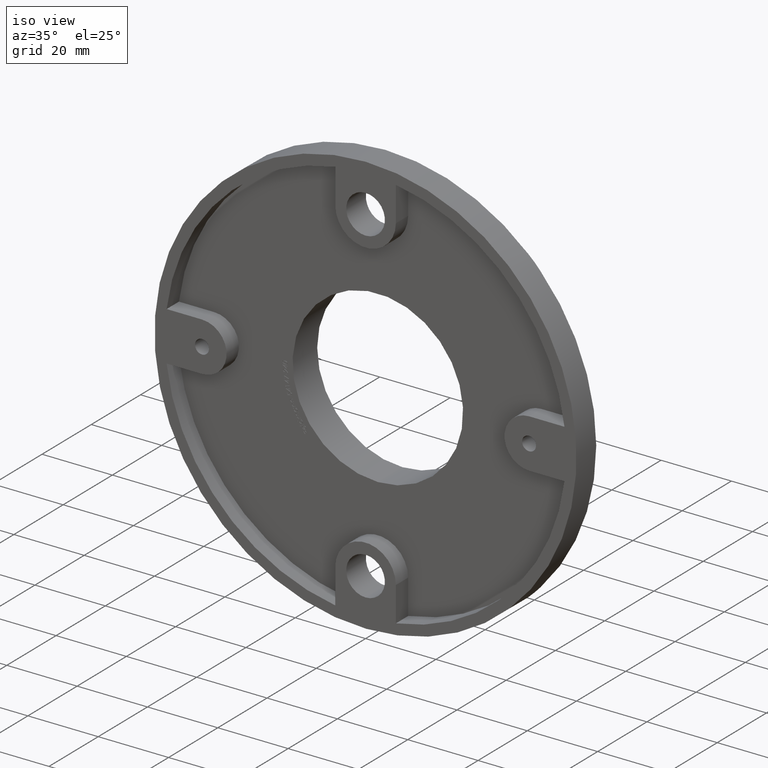
[diagram: clean part render]
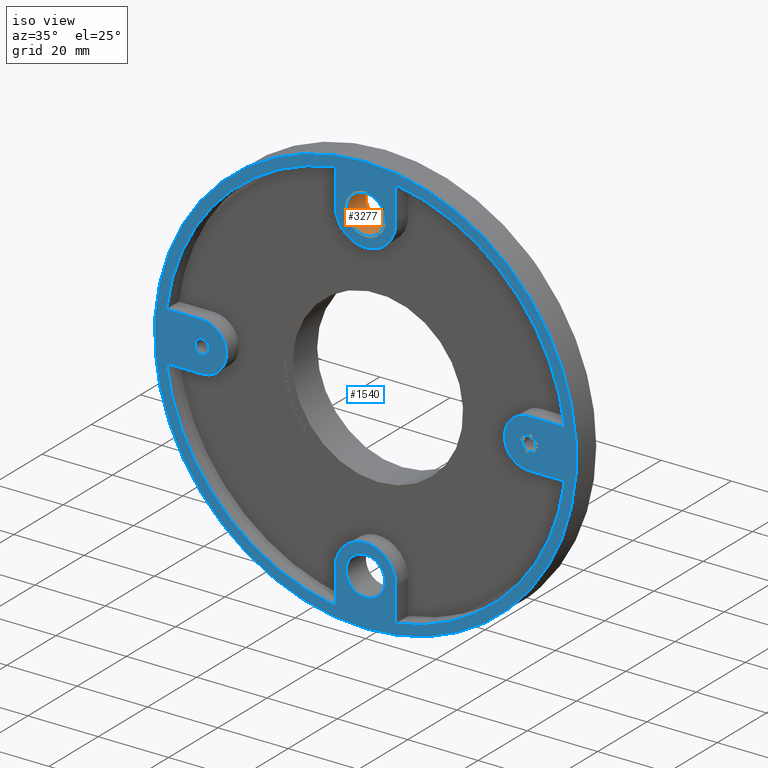
[diagram: same view with the hole feature highlighted: cylindrical wall and planar end face, labeled with their STEP entity ids]
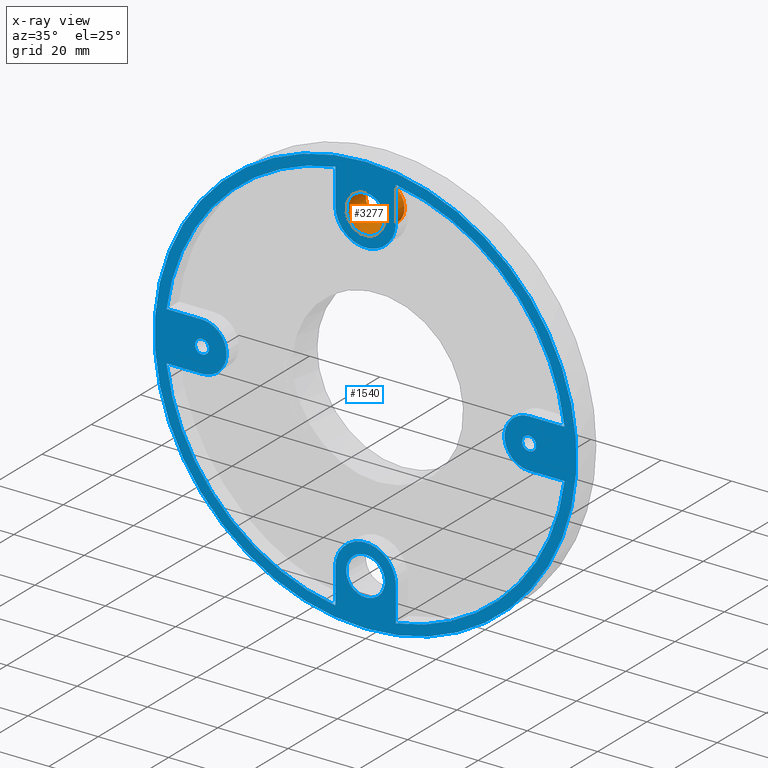
[diagram: x-ray of the same camera — body ghosted, the hole faces saturated]
A machine part, iso view. The highlighted faces form one hole feature of diameter 11 mm: the cylindrical wall (entity #3277, orange) and its adjacent planar end face (entity #1540, blue) — they share a circular edge in the B-rep.
The next image is the same camera in x-ray (body ghosted, the hole faces saturated) — the bore reads through the body.
Wall:
#618 = EDGE_LOOP ( 'NONE', ( #1888 ) ) ;
#1324 = CARTESIAN_POINT ( 'NONE',  ( 0.000000000000000000, 0.000000000000000000, 46.50000000000000000 ) ) ;
#1464 = CARTESIAN_POINT ( 'NONE',  ( 0.000000000000000000, 0.000000000000000000, 52.00000000000000000 ) ) ;
#1507 = DIRECTION ( 'NONE',  ( 0.000000000000000000, 0.000000000000000000, 1.000000000000000000 ) ) ;
#1888 = ORIENTED_EDGE ( 'NONE', *, *, #2570, .T. ) ;
#2073 = DIRECTION ( 'NONE',  ( 0.000000000000000000, 0.000000000000000000, -1.000000000000000000 ) ) ;
#2570 = EDGE_CURVE ( 'NONE', #5479, #5479, #11416, .T. ) ;
#3277 = ADVANCED_FACE ( 'NONE', ( #3834, #8873 ), #10856, .F. ) ;
#3430 = DIRECTION ( 'NONE',  ( 0.000000000000000000, 1.000000000000000000, 0.000000000000000000 ) ) ;
#3546 = EDGE_LOOP ( 'NONE', ( #10710 ) ) ;
#3834 = FACE_OUTER_BOUND ( 'NONE', #618, .T. ) ;
#4839 = DIRECTION ( 'NONE',  ( 0.000000000000000000, 1.000000000000000000, 0.000000000000000000 ) ) ;
#5479 = VERTEX_POINT ( 'NONE', #11093 ) ;
#5915 = DIRECTION ( 'NONE',  ( -0.000000000000000000, -1.000000000000000000, -0.000000000000000000 ) ) ;
#6069 = CARTESIAN_POINT ( 'NONE',  ( 0.000000000000000000, 8.000000000000000000, 46.50000000000000000 ) ) ;
#6891 = EDGE_CURVE ( 'NONE', #7930, #7930, #9810, .T. ) ;
#7930 = VERTEX_POINT ( 'NONE', #1464 ) ;
#8873 = FACE_OUTER_BOUND ( 'NONE', #3546, .T. ) ;
#9457 = DIRECTION ( 'NONE',  ( 0.000000000000000000, 0.000000000000000000, 1.000000000000000000 ) ) ;
#9810 = CIRCLE ( 'NONE', #11342, 5.499999999999998224 ) ;
#9839 = AXIS2_PLACEMENT_3D ( 'NONE', #11478, #5915, #2073 ) ;
#10509 = AXIS2_PLACEMENT_3D ( 'NONE', #6069, #3430, #1507 ) ;
#10710 = ORIENTED_EDGE ( 'NONE', *, *, #6891, .F. ) ;
#10856 = CYLINDRICAL_SURFACE ( 'NONE', #9839, 5.499999999999998224 ) ;
#11093 = CARTESIAN_POINT ( 'NONE',  ( 0.000000000000000000, 8.000000000000000000, 52.00000000000000000 ) ) ;
#11342 = AXIS2_PLACEMENT_3D ( 'NONE', #1324, #4839, #9457 ) ;
#11416 = CIRCLE ( 'NONE', #10509, 5.499999999999998224 ) ;
#11478 = CARTESIAN_POINT ( 'NONE',  ( 0.000000000000000000, 8.000000000000000000, 46.50000000000000000 ) ) ;
End face:
#81 = LINE ( 'NONE', #204, #7113 ) ;
#94 = FACE_BOUND ( 'NONE', #9239, .T. ) ;
#102 = VERTEX_POINT ( 'NONE', #10460 ) ;
#143 = EDGE_CURVE ( 'NONE', #10215, #9270, #5703, .T. ) ;
#190 = VERTEX_POINT ( 'NONE', #582 ) ;
#192 = DIRECTION ( 'NONE',  ( 0.000000000000000000, -1.000000000000000000, 0.000000000000000000 ) ) ;
#204 = CARTESIAN_POINT ( 'NONE',  ( 0.000000000000000000, 0.000000000000000000, 6.999999999999993783 ) ) ;
#268 = PLANE ( 'NONE',  #10742 ) ;
#274 = DIRECTION ( 'NONE',  ( -3.524545464551545274E-16, 0.000000000000000000, 1.000000000000000000 ) ) ;
#278 = CARTESIAN_POINT ( 'NONE',  ( -8.624999999999994671, 0.000000000000000000, -46.50000000000000000 ) ) ;
#380 = DIRECTION ( 'NONE',  ( 0.000000000000000000, 1.000000000000000000, -0.000000000000000000 ) ) ;
#409 = CARTESIAN_POINT ( 'NONE',  ( 1.206039934574417412E-15, -0.000000000000000000, -6.999999999999998224 ) ) ;
#542 = EDGE_CURVE ( 'NONE', #10536, #3629, #5567, .T. ) ;
#582 = CARTESIAN_POINT ( 'NONE',  ( -46.50000000000000000, 0.000000000000000000, -7.000000000000006217 ) ) ;
#623 = VERTEX_POINT ( 'NONE', #5122 ) ;
#802 = EDGE_CURVE ( 'NONE', #10734, #2204, #4554, .T. ) ;
#827 = AXIS2_PLACEMENT_3D ( 'NONE', #11220, #1151, #2984 ) ;
#871 = CARTESIAN_POINT ( 'NONE',  ( 0.000000000000000000, 0.000000000000000000, 0.000000000000000000 ) ) ;
#883 = ORIENTED_EDGE ( 'NONE', *, *, #976, .F. ) ;
#976 = EDGE_CURVE ( 'NONE', #10215, #2722, #2819, .T. ) ;
#1055 = VERTEX_POINT ( 'NONE', #6091 ) ;
#1075 = CARTESIAN_POINT ( 'NONE',  ( 0.000000000000000000, 0.000000000000000000, 0.000000000000000000 ) ) ;
#1124 = CARTESIAN_POINT ( 'NONE',  ( -1.138921523207038456E-14, 0.000000000000000000, 46.50000000000000000 ) ) ;
#1151 = DIRECTION ( 'NONE',  ( 0.000000000000000000, -1.000000000000000000, 0.000000000000000000 ) ) ;
#1324 = CARTESIAN_POINT ( 'NONE',  ( 0.000000000000000000, 0.000000000000000000, 46.50000000000000000 ) ) ;
#1464 = CARTESIAN_POINT ( 'NONE',  ( 0.000000000000000000, 0.000000000000000000, 52.00000000000000000 ) ) ;
#1509 = ORIENTED_EDGE ( 'NONE', *, *, #8646, .F. ) ;
#1540 = ADVANCED_FACE ( 'NONE', ( #94, #3949, #9974, #8846, #11702, #3804 ), #268, .F. ) ;
#1591 = DIRECTION ( 'NONE',  ( 0.000000000000000000, 1.000000000000000000, -0.000000000000000000 ) ) ;
#1624 = VERTEX_POINT ( 'NONE', #5519 ) ;
#1786 = EDGE_CURVE ( 'NONE', #11066, #10734, #4976, .T. ) ;
#1815 = ORIENTED_EDGE ( 'NONE', *, *, #5408, .T. ) ;
#1849 = CARTESIAN_POINT ( 'NONE',  ( 0.000000000000000000, 0.000000000000000000, -46.50000000000000000 ) ) ;
#2113 = VECTOR ( 'NONE', #9191, 1000.000000000000000 ) ;
#2124 = DIRECTION ( 'NONE',  ( 1.000000000000000000, 0.000000000000000000, 2.584371288373752584E-16 ) ) ;
#2139 = DIRECTION ( 'NONE',  ( -0.000000000000000000, 1.000000000000000000, -0.000000000000000000 ) ) ;
#2170 = DIRECTION ( 'NONE',  ( 0.000000000000000000, 1.000000000000000000, 0.000000000000000000 ) ) ;
#2204 = VERTEX_POINT ( 'NONE', #10200 ) ;
#2238 = DIRECTION ( 'NONE',  ( -1.000000000000000000, 0.000000000000000000, -1.722914192249168225E-16 ) ) ;
#2272 = EDGE_CURVE ( 'NONE', #6801, #11394, #81, .T. ) ;
#2344 = EDGE_LOOP ( 'NONE', ( #9883 ) ) ;
#2421 = EDGE_LOOP ( 'NONE', ( #5275 ) ) ;
#2722 = VERTEX_POINT ( 'NONE', #10927 ) ;
#2728 = DIRECTION ( 'NONE',  ( 0.000000000000000000, 1.000000000000000000, 0.000000000000000000 ) ) ;
#2736 = DIRECTION ( 'NONE',  ( 0.000000000000000000, 0.000000000000000000, 1.000000000000000000 ) ) ;
#2774 = CARTESIAN_POINT ( 'NONE',  ( -8.625000000000003553, -0.000000000000000000, -1.519960231587854639E-15 ) ) ;
#2788 = DIRECTION ( 'NONE',  ( 0.000000000000000000, 0.000000000000000000, -1.000000000000000000 ) ) ;
#2819 = CIRCLE ( 'NONE', #6913, 6.999999999999999112 ) ;
#2881 = CARTESIAN_POINT ( 'NONE',  ( -46.50000000000000000, 0.000000000000000000, 0.000000000000000000 ) ) ;
#2902 = DIRECTION ( 'NONE',  ( 0.000000000000000000, -1.000000000000000000, 0.000000000000000000 ) ) ;
#2967 = ORIENTED_EDGE ( 'NONE', *, *, #3701, .F. ) ;
#2984 = DIRECTION ( 'NONE',  ( 0.000000000000000000, 0.000000000000000000, -1.000000000000000000 ) ) ;
#3001 = AXIS2_PLACEMENT_3D ( 'NONE', #5740, #380, #11338 ) ;
#3056 = CARTESIAN_POINT ( 'NONE',  ( 8.625000000000012434, 0.000000000000000000, 3.039920463175712434E-15 ) ) ;
#3165 = CARTESIAN_POINT ( 'NONE',  ( 56.56854249492380404, 0.000000000000000000, 7.000000000000007994 ) ) ;
#3275 = ORIENTED_EDGE ( 'NONE', *, *, #2272, .T. ) ;
#3359 = VECTOR ( 'NONE', #2124, 1000.000000000000000 ) ;
#3499 = VERTEX_POINT ( 'NONE', #8160 ) ;
#3629 = VERTEX_POINT ( 'NONE', #5432 ) ;
#3630 = ORIENTED_EDGE ( 'NONE', *, *, #6891, .T. ) ;
#3645 = DIRECTION ( 'NONE',  ( 0.000000000000000000, -1.000000000000000000, 0.000000000000000000 ) ) ;
#3701 = EDGE_CURVE ( 'NONE', #11066, #3499, #7710, .T. ) ;
#3804 = FACE_BOUND ( 'NONE', #2421, .T. ) ;
#3840 = DIRECTION ( 'NONE',  ( -1.000000000000000000, 0.000000000000000000, 0.000000000000000000 ) ) ;
#3901 = ORIENTED_EDGE ( 'NONE', *, *, #6184, .T. ) ;
#3942 = EDGE_CURVE ( 'NONE', #10644, #10644, #11717, .T. ) ;
#3949 = FACE_OUTER_BOUND ( 'NONE', #9665, .T. ) ;
#3966 = CIRCLE ( 'NONE', #10359, 56.99999999999999289 ) ;
#4088 = LINE ( 'NONE', #3056, #10542 ) ;
#4102 = EDGE_CURVE ( 'NONE', #3629, #1624, #4409, .T. ) ;
#4139 = VERTEX_POINT ( 'NONE', #3165 ) ;
#4332 = EDGE_CURVE ( 'NONE', #9206, #9206, #10256, .T. ) ;
#4409 = LINE ( 'NONE', #11369, #7552 ) ;
#4427 = EDGE_CURVE ( 'NONE', #102, #2204, #3966, .T. ) ;
#4443 = EDGE_CURVE ( 'NONE', #1624, #11394, #6259, .T. ) ;
#4461 = DIRECTION ( 'NONE',  ( 0.000000000000000000, 0.000000000000000000, -1.000000000000000000 ) ) ;
#4554 = LINE ( 'NONE', #2774, #2113 ) ;
#4839 = DIRECTION ( 'NONE',  ( 0.000000000000000000, 1.000000000000000000, 0.000000000000000000 ) ) ;
#4850 = ORIENTED_EDGE ( 'NONE', *, *, #11712, .F. ) ;
#4976 = CIRCLE ( 'NONE', #8290, 8.625000000000000000 ) ;
#5122 = CARTESIAN_POINT ( 'NONE',  ( 0.000000000000000000, 0.000000000000000000, 60.00000000000000000 ) ) ;
#5259 = DIRECTION ( 'NONE',  ( 1.000000000000000000, 0.000000000000000000, -8.614570961245841126E-17 ) ) ;
#5275 = ORIENTED_EDGE ( 'NONE', *, *, #4332, .T. ) ;
#5408 = EDGE_CURVE ( 'NONE', #10536, #1055, #4088, .T. ) ;
#5432 = CARTESIAN_POINT ( 'NONE',  ( -8.625000000000007105, 0.000000000000000000, 46.50000000000000000 ) ) ;
#5435 = CARTESIAN_POINT ( 'NONE',  ( 46.50000000000000000, 0.000000000000000000, 0.000000000000000000 ) ) ;
#5485 = DIRECTION ( 'NONE',  ( 0.000000000000000000, 0.000000000000000000, 1.000000000000000000 ) ) ;
#5519 = CARTESIAN_POINT ( 'NONE',  ( -8.625000000000007105, 0.000000000000000000, 56.34367200493768735 ) ) ;
#5535 = ORIENTED_EDGE ( 'NONE', *, *, #10169, .F. ) ;
#5567 = CIRCLE ( 'NONE', #10038, 8.625000000000000000 ) ;
#5695 = VECTOR ( 'NONE', #10467, 1000.000000000000000 ) ;
#5703 = LINE ( 'NONE', #6176, #8291 ) ;
#5740 = CARTESIAN_POINT ( 'NONE',  ( 0.000000000000000000, 0.000000000000000000, -46.50000000000000000 ) ) ;
#5757 = CARTESIAN_POINT ( 'NONE',  ( -46.50000000000000000, 0.000000000000000000, 6.999999999999993783 ) ) ;
#5801 = DIRECTION ( 'NONE',  ( -0.000000000000000000, 1.000000000000000000, -0.000000000000000000 ) ) ;
#5814 = CARTESIAN_POINT ( 'NONE',  ( 8.625000000000005329, 0.000000000000000000, -46.50000000000000000 ) ) ;
#5828 = ORIENTED_EDGE ( 'NONE', *, *, #542, .F. ) ;
#5897 = DIRECTION ( 'NONE',  ( 0.000000000000000000, 0.000000000000000000, 1.000000000000000000 ) ) ;
#5919 = AXIS2_PLACEMENT_3D ( 'NONE', #2881, #2728, #5485 ) ;
#6085 = VECTOR ( 'NONE', #2238, 1000.000000000000000 ) ;
#6091 = CARTESIAN_POINT ( 'NONE',  ( 8.624999999999992895, 0.000000000000000000, 56.34367200493768735 ) ) ;
#6176 = CARTESIAN_POINT ( 'NONE',  ( -6.030199672872079174E-16, -0.000000000000000000, -6.999999999999988454 ) ) ;
#6184 = EDGE_CURVE ( 'NONE', #190, #6801, #11810, .T. ) ;
#6193 = DIRECTION ( 'NONE',  ( 0.000000000000000000, 0.000000000000000000, -1.000000000000000000 ) ) ;
#6200 = CIRCLE ( 'NONE', #8223, 60.00000000000000000 ) ;
#6259 = CIRCLE ( 'NONE', #9615, 56.99999999999999289 ) ;
#6638 = EDGE_LOOP ( 'NONE', ( #3630 ) ) ;
#6666 = DIRECTION ( 'NONE',  ( 0.000000000000000000, -0.000000000000000000, 1.000000000000000000 ) ) ;
#6667 = CARTESIAN_POINT ( 'NONE',  ( 46.50000000000000000, 0.000000000000000000, 1.138921523207038456E-14 ) ) ;
#6712 = CARTESIAN_POINT ( 'NONE',  ( 0.000000000000000000, 0.000000000000000000, 0.000000000000000000 ) ) ;
#6731 = DIRECTION ( 'NONE',  ( 0.000000000000000000, 0.000000000000000000, -1.000000000000000000 ) ) ;
#6801 = VERTEX_POINT ( 'NONE', #5757 ) ;
#6891 = EDGE_CURVE ( 'NONE', #7930, #7930, #9810, .T. ) ;
#6909 = EDGE_CURVE ( 'NONE', #190, #102, #8517, .T. ) ;
#6913 = AXIS2_PLACEMENT_3D ( 'NONE', #6667, #2139, #10434 ) ;
#6945 = CARTESIAN_POINT ( 'NONE',  ( 0.000000000000000000, 0.000000000000000000, 0.000000000000000000 ) ) ;
#7008 = ORIENTED_EDGE ( 'NONE', *, *, #4427, .F. ) ;
#7113 = VECTOR ( 'NONE', #3840, 1000.000000000000000 ) ;
#7165 = DIRECTION ( 'NONE',  ( 0.000000000000000000, 1.000000000000000000, 0.000000000000000000 ) ) ;
#7195 = EDGE_LOOP ( 'NONE', ( #11760 ) ) ;
#7315 = CARTESIAN_POINT ( 'NONE',  ( 56.56854249492380404, 0.000000000000000000, -6.999999999999993783 ) ) ;
#7541 = CARTESIAN_POINT ( 'NONE',  ( 0.000000000000000000, 0.000000000000000000, -52.00000000000000000 ) ) ;
#7552 = VECTOR ( 'NONE', #5897, 1000.000000000000000 ) ;
#7710 = LINE ( 'NONE', #11262, #5695 ) ;
#7820 = CIRCLE ( 'NONE', #11504, 2.000000000000003109 ) ;
#7870 = DIRECTION ( 'NONE',  ( 0.000000000000000000, 0.000000000000000000, -1.000000000000000000 ) ) ;
#7930 = VERTEX_POINT ( 'NONE', #1464 ) ;
#8145 = ORIENTED_EDGE ( 'NONE', *, *, #4102, .F. ) ;
#8160 = CARTESIAN_POINT ( 'NONE',  ( 8.625000000000007105, 0.000000000000000000, -56.34367200493768735 ) ) ;
#8223 = AXIS2_PLACEMENT_3D ( 'NONE', #871, #7165, #2736 ) ;
#8290 = AXIS2_PLACEMENT_3D ( 'NONE', #1849, #3645, #4461 ) ;
#8291 = VECTOR ( 'NONE', #5259, 1000.000000000000000 ) ;
#8346 = ORIENTED_EDGE ( 'NONE', *, *, #143, .T. ) ;
#8404 = CARTESIAN_POINT ( 'NONE',  ( 0.000000000000000000, 0.000000000000000000, 0.000000000000000000 ) ) ;
#8502 = CARTESIAN_POINT ( 'NONE',  ( -46.50000000000000000, 0.000000000000000000, 2.000000000000003109 ) ) ;
#8517 = LINE ( 'NONE', #409, #6085 ) ;
#8520 = ORIENTED_EDGE ( 'NONE', *, *, #6909, .F. ) ;
#8584 = CARTESIAN_POINT ( 'NONE',  ( -1.809059901861625231E-15, -0.000000000000000000, 6.999999999999992895 ) ) ;
#8597 = EDGE_CURVE ( 'NONE', #3499, #9270, #10696, .T. ) ;
#8646 = EDGE_CURVE ( 'NONE', #4139, #1055, #8999, .T. ) ;
#8718 = DIRECTION ( 'NONE',  ( 0.000000000000000000, 0.000000000000000000, -1.000000000000000000 ) ) ;
#8790 = DIRECTION ( 'NONE',  ( 0.000000000000000000, -1.000000000000000000, 0.000000000000000000 ) ) ;
#8846 = FACE_BOUND ( 'NONE', #6638, .T. ) ;
#8999 = CIRCLE ( 'NONE', #10195, 56.99999999999999289 ) ;
#9125 = ORIENTED_EDGE ( 'NONE', *, *, #1786, .T. ) ;
#9158 = ORIENTED_EDGE ( 'NONE', *, *, #4443, .F. ) ;
#9164 = CARTESIAN_POINT ( 'NONE',  ( -56.56854249492380404, 0.000000000000000000, 6.999999999999993783 ) ) ;
#9191 = DIRECTION ( 'NONE',  ( 1.762272732275772637E-16, 0.000000000000000000, -1.000000000000000000 ) ) ;
#9206 = VERTEX_POINT ( 'NONE', #7541 ) ;
#9239 = EDGE_LOOP ( 'NONE', ( #7008, #8520, #3901, #3275, #9158, #8145, #5828, #1815, #1509, #5535, #883, #8346, #10875, #2967, #9125, #11797 ) ) ;
#9270 = VERTEX_POINT ( 'NONE', #7315 ) ;
#9438 = EDGE_CURVE ( 'NONE', #9787, #9787, #7820, .T. ) ;
#9457 = DIRECTION ( 'NONE',  ( 0.000000000000000000, 0.000000000000000000, 1.000000000000000000 ) ) ;
#9465 = CARTESIAN_POINT ( 'NONE',  ( 46.50000000000000000, 0.000000000000000000, -6.999999999999992895 ) ) ;
#9615 = AXIS2_PLACEMENT_3D ( 'NONE', #9712, #8790, #8718 ) ;
#9665 = EDGE_LOOP ( 'NONE', ( #4850 ) ) ;
#9712 = CARTESIAN_POINT ( 'NONE',  ( 0.000000000000000000, 0.000000000000000000, 0.000000000000000000 ) ) ;
#9787 = VERTEX_POINT ( 'NONE', #11209 ) ;
#9810 = CIRCLE ( 'NONE', #11342, 5.499999999999998224 ) ;
#9883 = ORIENTED_EDGE ( 'NONE', *, *, #3942, .T. ) ;
#9974 = FACE_BOUND ( 'NONE', #2344, .T. ) ;
#10038 = AXIS2_PLACEMENT_3D ( 'NONE', #1124, #5801, #6731 ) ;
#10169 = EDGE_CURVE ( 'NONE', #2722, #4139, #10934, .T. ) ;
#10195 = AXIS2_PLACEMENT_3D ( 'NONE', #1075, #192, #2788 ) ;
#10200 = CARTESIAN_POINT ( 'NONE',  ( -8.624999999999992895, 0.000000000000000000, -56.34367200493768735 ) ) ;
#10215 = VERTEX_POINT ( 'NONE', #9465 ) ;
#10232 = DIRECTION ( 'NONE',  ( 0.000000000000000000, 0.000000000000000000, -1.000000000000000000 ) ) ;
#10256 = CIRCLE ( 'NONE', #3001, 5.499999999999998224 ) ;
#10359 = AXIS2_PLACEMENT_3D ( 'NONE', #6945, #10622, #7870 ) ;
#10434 = DIRECTION ( 'NONE',  ( 0.000000000000000000, 0.000000000000000000, -1.000000000000000000 ) ) ;
#10460 = CARTESIAN_POINT ( 'NONE',  ( -56.56854249492379694, 0.000000000000000000, -7.000000000000007105 ) ) ;
#10467 = DIRECTION ( 'NONE',  ( 1.762272732275772637E-16, 0.000000000000000000, -1.000000000000000000 ) ) ;
#10536 = VERTEX_POINT ( 'NONE', #11613 ) ;
#10542 = VECTOR ( 'NONE', #274, 1000.000000000000000 ) ;
#10622 = DIRECTION ( 'NONE',  ( 0.000000000000000000, -1.000000000000000000, 0.000000000000000000 ) ) ;
#10644 = VERTEX_POINT ( 'NONE', #8502 ) ;
#10664 = AXIS2_PLACEMENT_3D ( 'NONE', #8404, #2902, #10232 ) ;
#10696 = CIRCLE ( 'NONE', #10664, 56.99999999999999289 ) ;
#10734 = VERTEX_POINT ( 'NONE', #278 ) ;
#10742 = AXIS2_PLACEMENT_3D ( 'NONE', #6712, #2170, #6666 ) ;
#10875 = ORIENTED_EDGE ( 'NONE', *, *, #8597, .F. ) ;
#10927 = CARTESIAN_POINT ( 'NONE',  ( 46.50000000000000000, 0.000000000000000000, 7.000000000000005329 ) ) ;
#10934 = LINE ( 'NONE', #8584, #3359 ) ;
#11066 = VERTEX_POINT ( 'NONE', #5814 ) ;
#11209 = CARTESIAN_POINT ( 'NONE',  ( 46.50000000000000000, 0.000000000000000000, -2.000000000000003109 ) ) ;
#11220 = CARTESIAN_POINT ( 'NONE',  ( -46.50000000000000000, 0.000000000000000000, 0.000000000000000000 ) ) ;
#11262 = CARTESIAN_POINT ( 'NONE',  ( 8.624999999999996447, 0.000000000000000000, 1.519960231587853259E-15 ) ) ;
#11338 = DIRECTION ( 'NONE',  ( 0.000000000000000000, 0.000000000000000000, -1.000000000000000000 ) ) ;
#11342 = AXIS2_PLACEMENT_3D ( 'NONE', #1324, #4839, #9457 ) ;
#11369 = CARTESIAN_POINT ( 'NONE',  ( -8.625000000000007105, -0.000000000000000000, 0.000000000000000000 ) ) ;
#11394 = VERTEX_POINT ( 'NONE', #9164 ) ;
#11504 = AXIS2_PLACEMENT_3D ( 'NONE', #5435, #1591, #6193 ) ;
#11613 = CARTESIAN_POINT ( 'NONE',  ( 8.624999999999996447, 0.000000000000000000, 46.50000000000000000 ) ) ;
#11702 = FACE_BOUND ( 'NONE', #7195, .T. ) ;
#11712 = EDGE_CURVE ( 'NONE', #623, #623, #6200, .T. ) ;
#11717 = CIRCLE ( 'NONE', #5919, 2.000000000000003109 ) ;
#11760 = ORIENTED_EDGE ( 'NONE', *, *, #9438, .T. ) ;
#11797 = ORIENTED_EDGE ( 'NONE', *, *, #802, .T. ) ;
#11810 = CIRCLE ( 'NONE', #827, 7.000000000000000000 ) ;